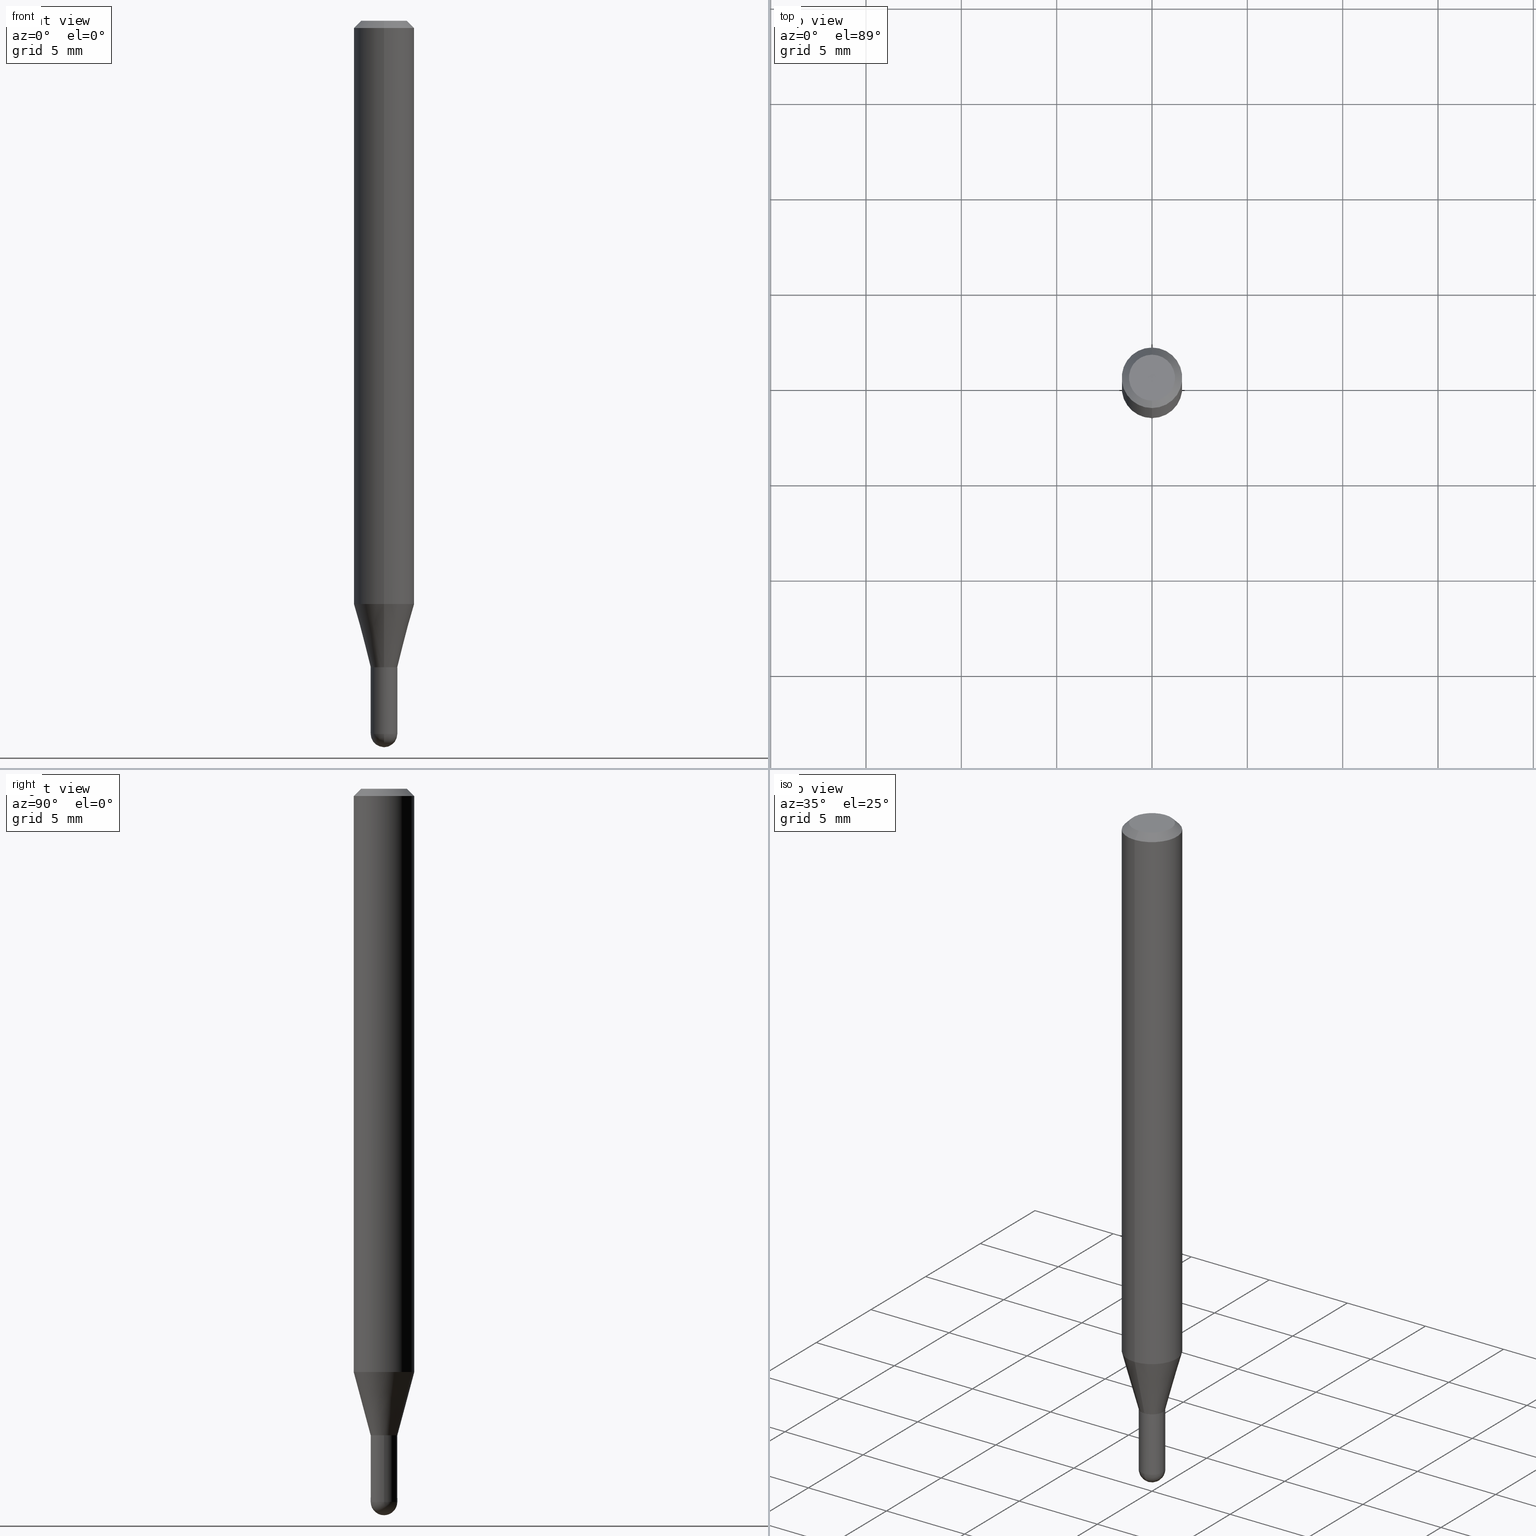
[diagram: canonical four-view strip — front | top / right | iso, engineering-drawing reading convention]
A machine part, canonical four-view strip (front | top / right | iso — engineering-drawing reading convention). The complete STEP part file that produces these views, byte-faithful:
ISO-10303-21;
HEADER;
FILE_DESCRIPTION (( 'STEP AP203' ),
    '1' );
FILE_NAME ('04433.STEP',
    '2024-03-08T19:28:56',
    ( '' ),
    ( '' ),
    'SwSTEP 2.0',
    'SolidWorks 2023',
    '' );
FILE_SCHEMA (( 'CONFIG_CONTROL_DESIGN' ));
ENDSEC;

DATA;
#1 = PERSON_AND_ORGANIZATION ( #476, #475 ) ;
#2 = DIRECTION ( 'NONE',  ( -6.982962677686265922E-15, -1.000000000000000000, 0.000000000000000000 ) ) ;
#3 = CLOSED_SHELL ( 'NONE', ( #393, #314, #457, #66, #229 ) ) ;
#4 = VECTOR ( 'NONE', #322, 39.37007874015748143 ) ;
#5 = VERTEX_POINT ( 'NONE', #416 ) ;
#6 = PERSON_AND_ORGANIZATION ( #476, #475 ) ;
#7 = LINE ( 'NONE', #172, #433 ) ;
#8 = DIRECTION ( 'NONE',  ( -2.445461311357550980E-29, 3.491492071862827071E-15, 1.000000000000000000 ) ) ;
#9 = DIRECTION ( 'NONE',  ( -2.445461311357550980E-29, 3.491492071862827071E-15, 1.000000000000000000 ) ) ;
#10 = ORIENTED_EDGE ( 'NONE', *, *, #462, .F. ) ;
#11 = DIRECTION ( 'NONE',  ( -2.445461311357550980E-29, 3.491492071862827071E-15, 1.000000000000000000 ) ) ;
#12 = DIRECTION ( 'NONE',  ( 1.000000000000000000, -6.982962677686277755E-15, 0.000000000000000000 ) ) ;
#13 = VECTOR ( 'NONE', #57, 39.37007874015748854 ) ;
#14 = AXIS2_PLACEMENT_3D ( 'NONE', #388, #344, #505 ) ;
#15 = CC_DESIGN_APPROVAL ( #159, ( #383 ) ) ;
#16 = DIRECTION ( 'NONE',  ( -2.445468806185136597E-29, 3.491481338843145583E-15, 1.000000000000000000 ) ) ;
#17 = DIRECTION ( 'NONE',  ( -2.445461311357550700E-29, 3.491492071862827071E-15, 1.000000000000000000 ) ) ;
#18 = VERTEX_POINT ( 'NONE', #313 ) ;
#19 = ORIENTED_EDGE ( 'NONE', *, *, #409, .F. ) ;
#20 = ORIENTED_EDGE ( 'NONE', *, *, #321, .F. ) ;
#21 = DIRECTION ( 'NONE',  ( -6.982962677686265922E-15, -1.000000000000000000, 0.000000000000000000 ) ) ;
#22 = CARTESIAN_POINT ( 'NONE',  ( -0.02750000000000000708, -4.705767677067038393E-15, -1.472500000000000142 ) ) ;
#23 = ORIENTED_EDGE ( 'NONE', *, *, #386, .F. ) ;
#24 =( NAMED_UNIT ( * ) SI_UNIT ( $, .STERADIAN. ) SOLID_ANGLE_UNIT ( ) );
#25 = AXIS2_PLACEMENT_3D ( 'NONE', #319, #47, #512 ) ;
#26 = EDGE_CURVE ( 'NONE', #108, #288, #493, .T. ) ;
#27 = ORIENTED_EDGE ( 'NONE', *, *, #265, .F. ) ;
#28 = ORIENTED_EDGE ( 'NONE', *, *, #316, .T. ) ;
#29 = CARTESIAN_POINT ( 'NONE',  ( 0.000000000000000000, 0.000000000000000000, 0.000000000000000000 ) ) ;
#30 = CARTESIAN_POINT ( 'NONE',  ( -0.02750000000000000708, 1.953992523340276014E-16, -1.352707149820099356E-30 ) ) ;
#31 = CYLINDRICAL_SURFACE ( 'NONE', #382, 0.06250000000000000000 ) ;
#32 = LINE ( 'NONE', #30, #136 ) ;
#33 = CC_DESIGN_PERSON_AND_ORGANIZATION_ASSIGNMENT ( #1, #240, ( #56 ) ) ;
#34 = CARTESIAN_POINT ( 'NONE',  ( 2.945260345494779582E-29, -4.205077012712332397E-15, -1.204378221735094456 ) ) ;
#35 = CIRCLE ( 'NONE', #104, 0.02750000000000019790 ) ;
#36 = CARTESIAN_POINT ( 'NONE',  ( 3.598601109812370247E-29, -5.144574050144187163E-15, -1.472500000000000142 ) ) ;
#37 = DIRECTION ( 'NONE',  ( -2.445461311357550980E-29, 3.491492071862827071E-15, 1.000000000000000000 ) ) ;
#38 = PERSON_AND_ORGANIZATION ( #476, #475 ) ;
#39 = CARTESIAN_POINT ( 'NONE',  ( 3.598601109812370247E-29, -5.144574050144187163E-15, -1.472500000000000142 ) ) ;
#40 = CARTESIAN_POINT ( 'NONE',  ( 3.264700856257157760E-29, -4.661127587355599122E-15, -1.335000000000000187 ) ) ;
#41 = VECTOR ( 'NONE', #285, 39.37007874015748143 ) ;
#42 = CARTESIAN_POINT ( 'NONE',  ( 1.918465386552596625E-16, 0.02699999999999533676, -1.335000000000000409 ) ) ;
#43 = EDGE_CURVE ( 'NONE', #423, #451, #274, .T. ) ;
#44 = FACE_OUTER_BOUND ( 'NONE', #293, .T. ) ;
#45 = VERTEX_POINT ( 'NONE', #311 ) ;
#46 = DATE_TIME_ROLE ( 'creation_date' ) ;
#47 = DIRECTION ( 'NONE',  ( 2.445461311357550980E-29, -3.491492071862827071E-15, -1.000000000000000000 ) ) ;
#48 = CIRCLE ( 'NONE', #85, 0.02750000000000019443 ) ;
#49 = ORIENTED_EDGE ( 'NONE', *, *, #402, .T. ) ;
#50 = CARTESIAN_POINT ( 'NONE',  ( 2.945260345494779582E-29, -4.205077012712332397E-15, -1.204378221735094456 ) ) ;
#51 = CARTESIAN_POINT ( 'NONE',  ( 0.000000000000000000, 0.000000000000000000, 0.000000000000000000 ) ) ;
#52 = PLANE ( 'NONE',  #93 ) ;
#53 = ADVANCED_FACE ( 'NONE', ( #226 ), #297, .F. ) ;
#54 = EDGE_LOOP ( 'NONE', ( #90, #506, #410, #348, #100 ) ) ;
#55 = DIRECTION ( 'NONE',  ( -6.982962677686265922E-15, -1.000000000000000000, 3.491492071862827071E-15 ) ) ;
#56 = PRODUCT_DEFINITION ( 'UNKNOWN', '', #383, #284 ) ;
#57 = DIRECTION ( 'NONE',  ( 1.839019923739650408E-15, 0.2588190451025320082, 0.9659258262890650926 ) ) ;
#58 = APPLICATION_PROTOCOL_DEFINITION ( 'international standard', 'config_control_design', 1994, #292 ) ;
#59 = ORIENTED_EDGE ( 'NONE', *, *, #392, .T. ) ;
#60 = CARTESIAN_POINT ( 'NONE',  ( 1.601770415187410324E-45, -2.286917678720774903E-31, -6.549972423396132599E-17 ) ) ;
#61 = CIRCLE ( 'NONE', #145, 0.02750000000000000014 ) ;
#62 = APPROVAL_PERSON_ORGANIZATION ( #430, #218, #278 ) ;
#63 = DIRECTION ( 'NONE',  ( 2.445461311357550700E-29, -3.491492071862827071E-15, -1.000000000000000000 ) ) ;
#64 = DIMENSIONAL_EXPONENTS ( 1.000000000000000000, 0.000000000000000000, 0.000000000000000000, 0.000000000000000000, 0.000000000000000000, 0.000000000000000000, 0.000000000000000000 ) ;
#65 = EDGE_LOOP ( 'NONE', ( #209, #360 ) ) ;
#66 = ADVANCED_FACE ( 'NONE', ( #390 ), #222, .T. ) ;
#67 = ORIENTED_EDGE ( 'NONE', *, *, #386, .T. ) ;
#68 = CARTESIAN_POINT ( 'NONE',  ( 3.264690850662331732E-29, -4.661141915936875169E-15, -1.335000000000000409 ) ) ;
#69 = CIRCLE ( 'NONE', #335, 0.04749999999999999362 ) ;
#70 = CARTESIAN_POINT ( 'NONE',  ( 0.000000000000000000, 0.000000000000000000, 0.000000000000000000 ) ) ;
#71 = APPROVAL_STATUS ( 'not_yet_approved' ) ;
#72 = CARTESIAN_POINT ( 'NONE',  ( 3.598601109812370247E-29, -5.144574050144187163E-15, -1.472500000000000142 ) ) ;
#73 = ORIENTED_EDGE ( 'NONE', *, *, #157, .T. ) ;
#74 = DATE_AND_TIME ( #173, #155 ) ;
#75 = LINE ( 'NONE', #317, #41 ) ;
#76 = PERSON_AND_ORGANIZATION_ROLE ( 'design_supplier' ) ;
#77 = DIRECTION ( 'NONE',  ( -6.982962677686265922E-15, -1.000000000000000000, 0.000000000000000000 ) ) ;
#78 = AXIS2_PLACEMENT_3D ( 'NONE', #472, #122, #148 ) ;
#79 = CC_DESIGN_PERSON_AND_ORGANIZATION_ASSIGNMENT ( #399, #76, ( #383 ) ) ;
#80 = DIRECTION ( 'NONE',  ( -2.445461311357550980E-29, 3.491492071862827071E-15, 1.000000000000000000 ) ) ;
#81 = FACE_OUTER_BOUND ( 'NONE', #54, .T. ) ;
#82 = ORIENTED_EDGE ( 'NONE', *, *, #392, .F. ) ;
#83 = LINE ( 'NONE', #130, #4 ) ;
#84 = AXIS2_PLACEMENT_3D ( 'NONE', #39, #193, #197 ) ;
#85 = AXIS2_PLACEMENT_3D ( 'NONE', #450, #11, #21 ) ;
#86 = AXIS2_PLACEMENT_3D ( 'NONE', #60, #342, #106 ) ;
#87 = ORIENTED_EDGE ( 'NONE', *, *, #26, .T. ) ;
#88 = ORIENTED_EDGE ( 'NONE', *, *, #482, .F. ) ;
#89 = ADVANCED_FACE ( 'NONE', ( #302 ), #508, .T. ) ;
#90 = ORIENTED_EDGE ( 'NONE', *, *, #316, .F. ) ;
#91 = CARTESIAN_POINT ( 'NONE',  ( 3.264690850662331732E-29, -4.661141915936875169E-15, -1.335000000000000409 ) ) ;
#92 = EDGE_CURVE ( 'NONE', #320, #273, #377, .T. ) ;
#93 = AXIS2_PLACEMENT_3D ( 'NONE', #217, #17, #488 ) ;
#94 = CARTESIAN_POINT ( 'NONE',  ( 0.000000000000000000, 0.000000000000000000, 0.000000000000000000 ) ) ;
#95 = CARTESIAN_POINT ( 'NONE',  ( 1.601770415187410324E-45, -2.286917678720774903E-31, -6.549972423396132599E-17 ) ) ;
#96 = CARTESIAN_POINT ( 'NONE',  ( 1.953992523340615224E-16, 0.02749999999999553149, -1.335000000000000187 ) ) ;
#97 = DIRECTION ( 'NONE',  ( -2.445461311357550980E-29, 3.491492071862827071E-15, 1.000000000000000000 ) ) ;
#98 = CARTESIAN_POINT ( 'NONE',  ( -1.920314736363410365E-16, -0.02750000000000485390, -1.335000000000000187 ) ) ;
#99 = EDGE_LOOP ( 'NONE', ( #215, #183, #303, #343 ) ) ;
#100 = ORIENTED_EDGE ( 'NONE', *, *, #160, .F. ) ;
#101 = DIRECTION ( 'NONE',  ( 1.000000000000000000, 0.000000000000000000, 0.000000000000000000 ) ) ;
#102 = APPROVAL ( #71, 'UNSPECIFIED' ) ;
#103 = DIRECTION ( 'NONE',  ( -6.982962677686265922E-15, -1.000000000000000000, 4.370956789862821150E-15 ) ) ;
#104 = AXIS2_PLACEMENT_3D ( 'NONE', #200, #473, #283 ) ;
#105 = CC_DESIGN_APPROVAL ( #218, ( #56 ) ) ;
#106 = DIRECTION ( 'NONE',  ( -6.982962677686266711E-15, -1.000000000000000000, 3.491492071862827071E-15 ) ) ;
#107 = CARTESIAN_POINT ( 'NONE',  ( 3.197442310920768728E-16, 0.02749999999999553149, -1.335000000000000187 ) ) ;
#108 = VERTEX_POINT ( 'NONE', #223 ) ;
#109 = DIRECTION ( 'NONE',  ( -6.982962677686265922E-15, -1.000000000000000000, 0.000000000000000000 ) ) ;
#110 = ORIENTED_EDGE ( 'NONE', *, *, #462, .T. ) ;
#111 = PERSON_AND_ORGANIZATION ( #476, #475 ) ;
#112 = AXIS2_PLACEMENT_3D ( 'NONE', #205, #132, #405 ) ;
#113 = AXIS2_PLACEMENT_3D ( 'NONE', #324, #290, #134 ) ;
#114 = DIRECTION ( 'NONE',  ( -2.445461311357550980E-29, 3.491492071862827071E-15, 1.000000000000000000 ) ) ;
#115 = CC_DESIGN_DATE_AND_TIME_ASSIGNMENT ( #436, #46, ( #56 ) ) ;
#116 = ADVANCED_FACE ( 'NONE', ( #44 ), #406, .T. ) ;
#117 = DATE_AND_TIME ( #350, #485 ) ;
#118 = COORDINATED_UNIVERSAL_TIME_OFFSET ( 5, 0, .BEHIND. ) ;
#119 = CYLINDRICAL_SURFACE ( 'NONE', #219, 0.02750000000000019443 ) ;
#120 = ADVANCED_FACE ( 'NONE', ( #247 ), #507, .T. ) ;
#121 = APPROVAL_STATUS ( 'not_yet_approved' ) ;
#122 = DIRECTION ( 'NONE',  ( -2.445461311357550980E-29, 3.491492071862827071E-15, 1.000000000000000000 ) ) ;
#123 = DIRECTION ( 'NONE',  ( -4.851104656540964275E-15, -0.7071067811865500152, -0.7071067811865450192 ) ) ;
#124 = DATE_AND_TIME ( #403, #362 ) ;
#125 = CC_DESIGN_DATE_AND_TIME_ASSIGNMENT ( #117, #276, ( #496 ) ) ;
#126 = CIRCLE ( 'NONE', #78, 0.06250000000000000000 ) ;
#127 = CARTESIAN_POINT ( 'NONE',  ( 3.264690850662330611E-29, -4.661141915936874380E-15, -1.335000000000000187 ) ) ;
#128 = CONICAL_SURFACE ( 'NONE', #162, 0.02699999999999999969, 0.7853981633974739252 ) ;
#129 = DATE_AND_TIME ( #470, #147 ) ;
#130 = CARTESIAN_POINT ( 'NONE',  ( -1.920314736363736756E-16, -0.02750000000000019443, 9.601603197622842336E-17 ) ) ;
#131 = EDGE_LOOP ( 'NONE', ( #178, #164, #88, #380 ) ) ;
#132 = DIRECTION ( 'NONE',  ( 2.445461311357550980E-29, -3.491492071862827071E-15, -1.000000000000000000 ) ) ;
#133 = ORIENTED_EDGE ( 'NONE', *, *, #231, .F. ) ;
#134 = DIRECTION ( 'NONE',  ( 1.000000000000000000, -6.982962677686265922E-15, 4.876176775795935232E-29 ) ) ;
#135 = DIRECTION ( 'NONE',  ( -1.807323732225379838E-15, -0.2588190451025252914, 0.9659258262890670910 ) ) ;
#136 = VECTOR ( 'NONE', #190, 39.37007874015748143 ) ;
#137 = ORIENTED_EDGE ( 'NONE', *, *, #231, .T. ) ;
#138 = ADVANCED_FACE ( 'NONE', ( #287 ), #119, .F. ) ;
#139 = ADVANCED_FACE ( 'NONE', ( #398 ), #349, .T. ) ;
#140 = DIRECTION ( 'NONE',  ( -6.982962677686265922E-15, -1.000000000000000000, 4.370956789862821150E-15 ) ) ;
#141 = FACE_OUTER_BOUND ( 'NONE', #338, .T. ) ;
#142 = ORIENTED_EDGE ( 'NONE', *, *, #227, .T. ) ;
#143 = FACE_OUTER_BOUND ( 'NONE', #275, .T. ) ;
#144 = EDGE_CURVE ( 'NONE', #108, #423, #167, .T. ) ;
#145 = AXIS2_PLACEMENT_3D ( 'NONE', #242, #169, #432 ) ;
#146 = DIRECTION ( 'NONE',  ( -6.982962677686265922E-15, -1.000000000000000000, 0.000000000000000000 ) ) ;
#147 = LOCAL_TIME ( 14, 28, 56.00000000000000000, #198 ) ;
#148 = DIRECTION ( 'NONE',  ( -6.982962677686265922E-15, -1.000000000000000000, 3.483106191921935554E-15 ) ) ;
#149 = ORIENTED_EDGE ( 'NONE', *, *, #411, .T. ) ;
#150 = DIRECTION ( 'NONE',  ( 6.982962677686265922E-15, 1.000000000000000000, -3.491492071862827071E-15 ) ) ;
#151 = CARTESIAN_POINT ( 'NONE',  ( 1.920314736364049589E-16, 0.02749999999999534067, -1.335000000000000187 ) ) ;
#152 = AXIS2_PLACEMENT_3D ( 'NONE', #40, #477, #277 ) ;
#153 = DIRECTION ( 'NONE',  ( -1.000000000000000000, 6.982962677686265922E-15, -4.883557194083112340E-29 ) ) ;
#154 = AXIS2_PLACEMENT_3D ( 'NONE', #72, #426, #345 ) ;
#155 = LOCAL_TIME ( 14, 28, 56.00000000000000000, #118 ) ;
#156 = LENGTH_MEASURE_WITH_UNIT ( LENGTH_MEASURE( 0.02539999999999999897 ), #228 );
#157 = EDGE_CURVE ( 'NONE', #449, #483, #364, .T. ) ;
#158 = CARTESIAN_POINT ( 'NONE',  ( 3.264690850662331732E-29, -4.661141915936875169E-15, -1.335000000000000409 ) ) ;
#159 = APPROVAL ( #400, 'UNSPECIFIED' ) ;
#160 = EDGE_CURVE ( 'NONE', #18, #260, #248, .T. ) ;
#161 = ORIENTED_EDGE ( 'NONE', *, *, #227, .F. ) ;
#162 = AXIS2_PLACEMENT_3D ( 'NONE', #68, #189, #234 ) ;
#163 = CC_DESIGN_APPROVAL ( #102, ( #496 ) ) ;
#164 = ORIENTED_EDGE ( 'NONE', *, *, #92, .T. ) ;
#165 = COORDINATED_UNIVERSAL_TIME_OFFSET ( 5, 0, .BEHIND. ) ;
#166 = EDGE_CURVE ( 'NONE', #320, #423, #7, .T. ) ;
#167 = LINE ( 'NONE', #42, #371 ) ;
#168 = APPLICATION_PROTOCOL_DEFINITION ( 'international standard', 'config_control_design', 1994, #363 ) ;
#169 = DIRECTION ( 'NONE',  ( -2.445468806185136597E-29, 3.491481338843145583E-15, 1.000000000000000000 ) ) ;
#170 = CLOSED_SHELL ( 'NONE', ( #138, #369, #120, #89, #139, #116, #447, #186, #442, #310, #456, #53 ) ) ;
#171 = AXIS2_PLACEMENT_3D ( 'NONE', #425, #63, #150 ) ;
#172 = CARTESIAN_POINT ( 'NONE',  ( 1.953992523340288833E-16, 0.02750000000000019443, -9.601603197622842336E-17 ) ) ;
#173 = CALENDAR_DATE ( 2024, 8, 3 ) ;
#174 = CARTESIAN_POINT ( 'NONE',  ( -4.287811248607203282E-16, -0.06250000000000005551, -0.01499999999999984852 ) ) ;
#175 = ORIENTED_EDGE ( 'NONE', *, *, #422, .T. ) ;
#176 = CARTESIAN_POINT ( 'NONE',  ( 4.440892098500625669E-16, 0.06250000000000000000, -2.182182544914266919E-16 ) ) ;
#177 = CARTESIAN_POINT ( 'NONE',  ( 0.02750000000000000708, -1.920314736363723691E-16, 1.340948613343882588E-30 ) ) ;
#178 = ORIENTED_EDGE ( 'NONE', *, *, #253, .T. ) ;
#179 = CIRCLE ( 'NONE', #413, 0.02749999999999996197 ) ;
#180 = DIRECTION ( 'NONE',  ( 1.000000000000000000, -6.982962677686277755E-15, 0.000000000000000000 ) ) ;
#181 = ORIENTED_EDGE ( 'NONE', *, *, #422, .F. ) ;
#182 = CARTESIAN_POINT ( 'NONE',  ( 3.263468120006652380E-29, -4.659396169900942579E-15, -1.334500000000000242 ) ) ;
#183 = ORIENTED_EDGE ( 'NONE', *, *, #166, .T. ) ;
#184 = AXIS2_PLACEMENT_3D ( 'NONE', #203, #401, #2 ) ;
#185 = ORIENTED_EDGE ( 'NONE', *, *, #471, .T. ) ;
#186 = ADVANCED_FACE ( 'NONE', ( #431 ), #396, .T. ) ;
#187 = FACE_OUTER_BOUND ( 'NONE', #408, .T. ) ;
#188 = EDGE_CURVE ( 'NONE', #497, #451, #83, .T. ) ;
#189 = DIRECTION ( 'NONE',  ( -2.445461311357550980E-29, 3.491492071862827071E-15, 1.000000000000000000 ) ) ;
#190 = DIRECTION ( 'NONE',  ( -2.445468806185136877E-29, 3.491481338843145188E-15, 1.000000000000000000 ) ) ;
#191 = DIRECTION ( 'NONE',  ( -2.445461311357550980E-29, 3.491492071862827071E-15, 1.000000000000000000 ) ) ;
#192 = APPROVAL_PERSON_ORGANIZATION ( #510, #102, #357 ) ;
#193 = DIRECTION ( 'NONE',  ( 1.000000000000000000, -6.982962677686265922E-15, 4.883557194083112901E-29 ) ) ;
#194 = LINE ( 'NONE', #266, #501 ) ;
#195 = EDGE_CURVE ( 'NONE', #5, #260, #365, .T. ) ;
#196 = DIRECTION ( 'NONE',  ( -6.982962677686265922E-15, -1.000000000000000000, 3.491492071862827071E-15 ) ) ;
#197 = DIRECTION ( 'NONE',  ( -6.982962677686265922E-15, -1.000000000000000000, 0.000000000000000000 ) ) ;
#198 = COORDINATED_UNIVERSAL_TIME_OFFSET ( 5, 0, .BEHIND. ) ;
#199 = AXIS2_PLACEMENT_3D ( 'NONE', #490, #16, #180 ) ;
#200 = CARTESIAN_POINT ( 'NONE',  ( 3.263468120006652380E-29, -4.659396169900942579E-15, -1.334500000000000242 ) ) ;
#201 = SHAPE_DEFINITION_REPRESENTATION ( #502, #235 ) ;
#202 = CALENDAR_DATE ( 2024, 8, 3 ) ;
#203 = CARTESIAN_POINT ( 'NONE',  ( 3.264690850662330611E-29, -4.661141915936874380E-15, -1.335000000000000187 ) ) ;
#204 = COORDINATED_UNIVERSAL_TIME_OFFSET ( 5, 0, .BEHIND. ) ;
#205 = CARTESIAN_POINT ( 'NONE',  ( 3.668191967036342918E-31, -5.237238107794263631E-17, -0.01500000000000006710 ) ) ;
#206 = ORIENTED_EDGE ( 'NONE', *, *, #144, .T. ) ;
#207 = AXIS2_PLACEMENT_3D ( 'NONE', #486, #448, #367 ) ;
#208 = DIRECTION ( 'NONE',  ( -6.982962677686265922E-15, -1.000000000000000000, 0.000000000000000000 ) ) ;
#209 = ORIENTED_EDGE ( 'NONE', *, *, #402, .F. ) ;
#210 = DIRECTION ( 'NONE',  ( -6.982962677686266711E-15, -1.000000000000000000, 3.491492071862827071E-15 ) ) ;
#211 = DIRECTION ( 'NONE',  ( -2.445468806185136597E-29, 3.491481338843145583E-15, 1.000000000000000000 ) ) ;
#212 = VERTEX_POINT ( 'NONE', #280 ) ;
#213 = EDGE_CURVE ( 'NONE', #260, #18, #61, .T. ) ;
#214 = CARTESIAN_POINT ( 'NONE',  ( 3.600952817107613706E-29, -5.141206271446532325E-15, -1.472500000000000142 ) ) ;
#215 = ORIENTED_EDGE ( 'NONE', *, *, #373, .F. ) ;
#216 = DIRECTION ( 'NONE',  ( -6.982962677686265133E-15, -1.000000000000000000, 0.000000000000000000 ) ) ;
#217 = CARTESIAN_POINT ( 'NONE',  ( 3.264690850662331732E-29, -4.661141915936875169E-15, -1.335000000000000409 ) ) ;
#218 = APPROVAL ( #121, 'UNSPECIFIED' ) ;
#219 = AXIS2_PLACEMENT_3D ( 'NONE', #315, #359, #469 ) ;
#220 = CIRCLE ( 'NONE', #267, 0.02750000000000000708 ) ;
#221 = EDGE_CURVE ( 'NONE', #492, #483, #75, .T. ) ;
#222 = SPHERICAL_SURFACE ( 'NONE', #84, 0.02749999999999996197 ) ;
#223 = CARTESIAN_POINT ( 'NONE',  ( 1.936228954946606048E-16, 0.02699999999999533676, -1.335000000000000409 ) ) ;
#224 = CARTESIAN_POINT ( 'NONE',  ( 3.600952817107613706E-29, -5.141206271446532325E-15, -1.472500000000000142 ) ) ;
#225 = AXIS2_PLACEMENT_3D ( 'NONE', #94, #415, #55 ) ;
#226 = FACE_OUTER_BOUND ( 'NONE', #460, .T. ) ;
#227 = EDGE_CURVE ( 'NONE', #483, #212, #435, .T. ) ;
#228 =( LENGTH_UNIT ( ) NAMED_UNIT ( * ) SI_UNIT ( $, .METRE. ) );
#229 = ADVANCED_FACE ( 'NONE', ( #81 ), #250, .T. ) ;
#230 = DIRECTION ( 'NONE',  ( 0.000000000000000000, 0.000000000000000000, 1.000000000000000000 ) ) ;
#231 = EDGE_CURVE ( 'NONE', #451, #423, #35, .T. ) ;
#232 = AXIS2_PLACEMENT_3D ( 'NONE', #91, #445, #299 ) ;
#233 = EDGE_LOOP ( 'NONE', ( #389, #149, #161, #308 ) ) ;
#234 = DIRECTION ( 'NONE',  ( -6.982962677686265133E-15, -1.000000000000000000, 0.000000000000000000 ) ) ;
#235 = ADVANCED_BREP_SHAPE_REPRESENTATION ( '04433', ( #256, #421, #318 ), #296 ) ;
#236 = ORIENTED_EDGE ( 'NONE', *, *, #279, .F. ) ;
#237 = ORIENTED_EDGE ( 'NONE', *, *, #499, .T. ) ;
#238 = DIRECTION ( 'NONE',  ( -6.982962677686265922E-15, -1.000000000000000000, 3.483106191921935554E-15 ) ) ;
#239 = VERTEX_POINT ( 'NONE', #437 ) ;
#240 = PERSON_AND_ORGANIZATION_ROLE ( 'creator' ) ;
#241 = CIRCLE ( 'NONE', #14, 0.02750000000000000708 ) ;
#242 = CARTESIAN_POINT ( 'NONE',  ( 3.264700856257157760E-29, -4.661127587355599122E-15, -1.335000000000000187 ) ) ;
#243 = APPROVAL_ROLE ( '' ) ;
#244 = CARTESIAN_POINT ( 'NONE',  ( 0.02750000000000000014, -4.853159060991972403E-15, -1.335000000000000187 ) ) ;
#245 = ORIENTED_EDGE ( 'NONE', *, *, #253, .F. ) ;
#246 = MECHANICAL_CONTEXT ( 'NONE', #292, 'mechanical' ) ;
#247 = FACE_OUTER_BOUND ( 'NONE', #286, .T. ) ;
#248 = CIRCLE ( 'NONE', #152, 0.02750000000000000014 ) ;
#249 = CIRCLE ( 'NONE', #372, 0.02750000000000000708 ) ;
#250 = CYLINDRICAL_SURFACE ( 'NONE', #351, 0.02750000000000000708 ) ;
#251 = VERTEX_POINT ( 'NONE', #354 ) ;
#252 = LINE ( 'NONE', #176, #407 ) ;
#253 = EDGE_CURVE ( 'NONE', #497, #320, #428, .T. ) ;
#254 = DIRECTION ( 'NONE',  ( -2.445468806185136597E-29, 3.491481338843145583E-15, 1.000000000000000000 ) ) ;
#255 = DIRECTION ( 'NONE',  ( -2.445461311357550980E-29, 3.491492071862827071E-15, 1.000000000000000000 ) ) ;
#256 = MANIFOLD_SOLID_BREP ( 'Body-Move/Copy2[1]', #3 ) ;
#257 = EDGE_LOOP ( 'NONE', ( #330, #263 ) ) ;
#258 = DIRECTION ( 'NONE',  ( 1.000000000000000000, -6.982962677686277755E-15, 0.000000000000000000 ) ) ;
#259 = AXIS2_PLACEMENT_3D ( 'NONE', #34, #304, #103 ) ;
#260 = VERTEX_POINT ( 'NONE', #244 ) ;
#261 = VERTEX_POINT ( 'NONE', #22 ) ;
#262 = ORIENTED_EDGE ( 'NONE', *, *, #157, .F. ) ;
#263 = ORIENTED_EDGE ( 'NONE', *, *, #160, .T. ) ;
#264 = PERSON_AND_ORGANIZATION_ROLE ( 'creator' ) ;
#265 = EDGE_CURVE ( 'NONE', #261, #239, #220, .T. ) ;
#266 = CARTESIAN_POINT ( 'NONE',  ( -1.885399922974965256E-16, -0.02700000000000466263, -1.335000000000000409 ) ) ;
#267 = AXIS2_PLACEMENT_3D ( 'NONE', #224, #334, #258 ) ;
#268 = PLANE ( 'NONE',  #484 ) ;
#269 = ORIENTED_EDGE ( 'NONE', *, *, #471, .F. ) ;
#270 =( CONVERSION_BASED_UNIT ( 'INCH', #156 ) LENGTH_UNIT ( ) NAMED_UNIT ( #64 ) );
#271 = CARTESIAN_POINT ( 'NONE',  ( 1.953992523340608815E-16, 0.02749999999999544129, -1.334500000000000242 ) ) ;
#272 = SPHERICAL_SURFACE ( 'NONE', #154, 0.02749999999999996197 ) ;
#273 = VERTEX_POINT ( 'NONE', #325 ) ;
#274 = CIRCLE ( 'NONE', #458, 0.02750000000000019790 ) ;
#275 = EDGE_LOOP ( 'NONE', ( #67, #28, #336, #374, #185 ) ) ;
#276 = DATE_TIME_ROLE ( 'classification_date' ) ;
#277 = DIRECTION ( 'NONE',  ( 1.000000000000000000, -6.982962677686279332E-15, 0.000000000000000000 ) ) ;
#278 = APPROVAL_ROLE ( '' ) ;
#279 = EDGE_CURVE ( 'NONE', #251, #212, #376, .T. ) ;
#280 = CARTESIAN_POINT ( 'NONE',  ( 4.440892098500922971E-16, 0.06249999999999995143, -0.01500000000000028394 ) ) ;
#281 = PERSON_AND_ORGANIZATION_ROLE ( 'design_owner' ) ;
#282 = CIRCLE ( 'NONE', #232, 0.02699999999999999969 ) ;
#283 = DIRECTION ( 'NONE',  ( -6.982962677686265922E-15, -1.000000000000000000, 0.000000000000000000 ) ) ;
#284 = DESIGN_CONTEXT ( 'detailed design', #363, 'design' ) ;
#285 = DIRECTION ( 'NONE',  ( -2.445461311357550980E-29, 3.491492071862827071E-15, 1.000000000000000000 ) ) ;
#286 = EDGE_LOOP ( 'NONE', ( #19, #73, #142, #236 ) ) ;
#287 = FACE_OUTER_BOUND ( 'NONE', #99, .T. ) ;
#288 = VERTEX_POINT ( 'NONE', #491 ) ;
#289 = ORIENTED_EDGE ( 'NONE', *, *, #368, .F. ) ;
#290 = DIRECTION ( 'NONE',  ( -2.445468806185136597E-29, 3.491481338843145583E-15, 1.000000000000000000 ) ) ;
#291 = EDGE_CURVE ( 'NONE', #497, #492, #481, .T. ) ;
#292 = APPLICATION_CONTEXT ( 'configuration controlled 3d designs of mechanical parts and assemblies' ) ;
#293 = EDGE_LOOP ( 'NONE', ( #366, #298, #489, #82 ) ) ;
#294 = CYLINDRICAL_SURFACE ( 'NONE', #113, 0.02750000000000000708 ) ;
#295 = VECTOR ( 'NONE', #468, 39.37007874015748143 ) ;
#296 =( GEOMETRIC_REPRESENTATION_CONTEXT ( 3 ) GLOBAL_UNCERTAINTY_ASSIGNED_CONTEXT ( ( #446 ) ) GLOBAL_UNIT_ASSIGNED_CONTEXT ( ( #270, #312, #24 ) ) REPRESENTATION_CONTEXT ( 'NONE', 'WORKASPACE' ) );
#297 = CYLINDRICAL_SURFACE ( 'NONE', #441, 0.02750000000000019443 ) ;
#298 = ORIENTED_EDGE ( 'NONE', *, *, #373, .T. ) ;
#299 = DIRECTION ( 'NONE',  ( -6.982962677686265133E-15, -1.000000000000000000, 0.000000000000000000 ) ) ;
#300 = DIRECTION ( 'NONE',  ( 4.937700262164548042E-15, 0.7071067811865451302, -0.7071067811865499042 ) ) ;
#301 = EDGE_CURVE ( 'NONE', #239, #5, #249, .T. ) ;
#302 = FACE_OUTER_BOUND ( 'NONE', #233, .T. ) ;
#303 = ORIENTED_EDGE ( 'NONE', *, *, #43, .T. ) ;
#304 = DIRECTION ( 'NONE',  ( -2.445461311357550980E-29, 3.491492071862827071E-15, 1.000000000000000000 ) ) ;
#305 = AXIS2_PLACEMENT_3D ( 'NONE', #127, #9, #208 ) ;
#306 = EDGE_LOOP ( 'NONE', ( #49, #206, #133, #181 ) ) ;
#307 = CARTESIAN_POINT ( 'NONE',  ( 0.000000000000000000, 0.000000000000000000, 0.000000000000000000 ) ) ;
#308 = ORIENTED_EDGE ( 'NONE', *, *, #221, .F. ) ;
#309 = PLANE ( 'NONE',  #171 ) ;
#310 = ADVANCED_FACE ( 'NONE', ( #328 ), #52, .F. ) ;
#311 = CARTESIAN_POINT ( 'NONE',  ( 1.953992523340633713E-16, 0.02749999999999484107, -1.472500000000000142 ) ) ;
#312 =( NAMED_UNIT ( * ) PLANE_ANGLE_UNIT ( ) SI_UNIT ( $, .RADIAN. ) );
#313 = CARTESIAN_POINT ( 'NONE',  ( -0.02750000000000000014, -4.705767677067038393E-15, -1.335000000000000187 ) ) ;
#314 = ADVANCED_FACE ( 'NONE', ( #141 ), #272, .T. ) ;
#315 = CARTESIAN_POINT ( 'NONE',  ( 0.000000000000000000, 0.000000000000000000, 0.000000000000000000 ) ) ;
#316 = EDGE_CURVE ( 'NONE', #261, #18, #32, .T. ) ;
#317 = CARTESIAN_POINT ( 'NONE',  ( -4.364351673553916201E-16, -0.06250000000000000000, 2.182182544914266919E-16 ) ) ;
#318 = AXIS2_PLACEMENT_3D ( 'NONE', #29, #230, #101 ) ;
#319 = CARTESIAN_POINT ( 'NONE',  ( 3.668191967036342918E-31, -5.237238107794263631E-17, -0.01500000000000006710 ) ) ;
#320 = VERTEX_POINT ( 'NONE', #107 ) ;
#321 = EDGE_CURVE ( 'NONE', #212, #483, #126, .T. ) ;
#322 = DIRECTION ( 'NONE',  ( -2.445461311357550980E-29, 3.491492071862827071E-15, 1.000000000000000000 ) ) ;
#323 = ORIENTED_EDGE ( 'NONE', *, *, #409, .T. ) ;
#324 = CARTESIAN_POINT ( 'NONE',  ( 0.000000000000000000, 0.000000000000000000, 0.000000000000000000 ) ) ;
#325 = CARTESIAN_POINT ( 'NONE',  ( 4.440892098500917054E-16, 0.06249999999999575340, -1.204378221735094678 ) ) ;
#326 = ORIENTED_EDGE ( 'NONE', *, *, #279, .T. ) ;
#327 = AXIS2_PLACEMENT_3D ( 'NONE', #50, #487, #140 ) ;
#328 = FACE_OUTER_BOUND ( 'NONE', #65, .T. ) ;
#329 = APPROVAL_PERSON_ORGANIZATION ( #6, #159, #243 ) ;
#330 = ORIENTED_EDGE ( 'NONE', *, *, #213, .T. ) ;
#331 = CARTESIAN_POINT ( 'NONE',  ( 3.264690850662331732E-29, -4.661141915936875169E-15, -1.335000000000000409 ) ) ;
#332 = ORIENTED_EDGE ( 'NONE', *, *, #188, .T. ) ;
#333 = AXIS2_PLACEMENT_3D ( 'NONE', #158, #427, #418 ) ;
#334 = DIRECTION ( 'NONE',  ( -2.445468806185136597E-29, 3.491481338843145583E-15, 1.000000000000000000 ) ) ;
#335 = AXIS2_PLACEMENT_3D ( 'NONE', #95, #97, #210 ) ;
#336 = ORIENTED_EDGE ( 'NONE', *, *, #213, .F. ) ;
#337 = FACE_OUTER_BOUND ( 'NONE', #429, .T. ) ;
#338 = EDGE_LOOP ( 'NONE', ( #10, #454, #269, #504 ) ) ;
#339 = DIRECTION ( 'NONE',  ( -6.982962677686265922E-15, -1.000000000000000000, 3.491492071862827071E-15 ) ) ;
#340 = CARTESIAN_POINT ( 'NONE',  ( -3.773273898774340269E-16, -0.04749999999999999362, 1.003461491795229392E-16 ) ) ;
#341 = VECTOR ( 'NONE', #135, 39.37007874015748143 ) ;
#342 = DIRECTION ( 'NONE',  ( -2.445461311357550980E-29, 3.491492071862827071E-15, 1.000000000000000000 ) ) ;
#343 = ORIENTED_EDGE ( 'NONE', *, *, #188, .F. ) ;
#344 = DIRECTION ( 'NONE',  ( -2.445468806185136597E-29, 3.491481338843145583E-15, 1.000000000000000000 ) ) ;
#345 = DIRECTION ( 'NONE',  ( -6.982962677686265922E-15, -1.000000000000000000, 0.000000000000000000 ) ) ;
#346 = VERTEX_POINT ( 'NONE', #375 ) ;
#347 = PRODUCT_RELATED_PRODUCT_CATEGORY ( 'detail', '', ( #379 ) ) ;
#348 = ORIENTED_EDGE ( 'NONE', *, *, #195, .T. ) ;
#349 = CONICAL_SURFACE ( 'NONE', #184, 0.02750000000000019443, 0.2617993877991576235 ) ;
#350 = CALENDAR_DATE ( 2024, 8, 3 ) ;
#351 = AXIS2_PLACEMENT_3D ( 'NONE', #51, #211, #394 ) ;
#352 = COORDINATED_UNIVERSAL_TIME_OFFSET ( 5, 0, .BEHIND. ) ;
#353 = LOCAL_TIME ( 14, 28, 56.00000000000000000, #352 ) ;
#354 = CARTESIAN_POINT ( 'NONE',  ( 3.840629472727447874E-16, 0.04749999999999999362, -2.313455976474456035E-16 ) ) ;
#355 = DIRECTION ( 'NONE',  ( 5.024295867788190974E-15, 0.7071067811865681119, 0.7071067811865270336 ) ) ;
#356 = CC_DESIGN_PERSON_AND_ORGANIZATION_ASSIGNMENT ( #378, #264, ( #383 ) ) ;
#357 = APPROVAL_ROLE ( '' ) ;
#358 = APPROVAL_DATE_TIME ( #129, #218 ) ;
#359 = DIRECTION ( 'NONE',  ( -2.445461311357550980E-29, 3.491492071862827071E-15, 1.000000000000000000 ) ) ;
#360 = ORIENTED_EDGE ( 'NONE', *, *, #26, .F. ) ;
#361 = AXIS2_PLACEMENT_3D ( 'NONE', #511, #80, #77 ) ;
#362 = LOCAL_TIME ( 14, 28, 56.00000000000000000, #165 ) ;
#363 = APPLICATION_CONTEXT ( 'configuration controlled 3d designs of mechanical parts and assemblies' ) ;
#364 = LINE ( 'NONE', #174, #466 ) ;
#365 = LINE ( 'NONE', #177, #295 ) ;
#366 = ORIENTED_EDGE ( 'NONE', *, *, #92, .F. ) ;
#367 = DIRECTION ( 'NONE',  ( 7.105427357601001070E-15, 1.000000000000000000, 0.000000000000000000 ) ) ;
#368 = EDGE_CURVE ( 'NONE', #346, #45, #420, .T. ) ;
#369 = ADVANCED_FACE ( 'NONE', ( #452 ), #387, .T. ) ;
#370 = ORIENTED_EDGE ( 'NONE', *, *, #221, .T. ) ;
#371 = VECTOR ( 'NONE', #355, 39.37007874015748143 ) ;
#372 = AXIS2_PLACEMENT_3D ( 'NONE', #214, #254, #12 ) ;
#373 = EDGE_CURVE ( 'NONE', #320, #497, #48, .T. ) ;
#374 = ORIENTED_EDGE ( 'NONE', *, *, #195, .F. ) ;
#375 = CARTESIAN_POINT ( 'NONE',  ( 3.664675648334840268E-29, -5.242273676311202011E-15, -1.500000000000000222 ) ) ;
#376 = LINE ( 'NONE', #412, #444 ) ;
#377 = LINE ( 'NONE', #96, #13 ) ;
#378 = PERSON_AND_ORGANIZATION ( #476, #475 ) ;
#379 = PRODUCT ( '04433', '04433', '', ( #246 ) ) ;
#380 = ORIENTED_EDGE ( 'NONE', *, *, #291, .F. ) ;
#381 = CARTESIAN_POINT ( 'NONE',  ( -4.364351673553623336E-16, -0.06250000000000423273, -1.204378221735094234 ) ) ;
#382 = AXIS2_PLACEMENT_3D ( 'NONE', #307, #191, #339 ) ;
#383 = PRODUCT_DEFINITION_FORMATION_WITH_SPECIFIED_SOURCE ( 'ANY', '', #379, .NOT_KNOWN. ) ;
#384 = ORIENTED_EDGE ( 'NONE', *, *, #144, .F. ) ;
#385 = CARTESIAN_POINT ( 'NONE',  ( -1.920314736363410365E-16, -0.02750000000000485390, -1.335000000000000187 ) ) ;
#386 = EDGE_CURVE ( 'NONE', #45, #261, #509, .T. ) ;
#387 = CONICAL_SURFACE ( 'NONE', #467, 0.02699999999999999969, 0.7853981633974739252 ) ;
#388 = CARTESIAN_POINT ( 'NONE',  ( 3.600952817107613706E-29, -5.141206271446532325E-15, -1.472500000000000142 ) ) ;
#389 = ORIENTED_EDGE ( 'NONE', *, *, #482, .T. ) ;
#390 = FACE_OUTER_BOUND ( 'NONE', #478, .T. ) ;
#391 = APPROVAL_DATE_TIME ( #74, #159 ) ;
#392 = EDGE_CURVE ( 'NONE', #273, #492, #495, .T. ) ;
#393 = ADVANCED_FACE ( 'NONE', ( #143 ), #294, .T. ) ;
#394 = DIRECTION ( 'NONE',  ( 1.000000000000000000, -6.982962677686265922E-15, 4.876176775795935232E-29 ) ) ;
#395 = SECURITY_CLASSIFICATION_LEVEL ( 'unclassified' ) ;
#396 = CONICAL_SURFACE ( 'NONE', #25, 0.06250000000000000000, 0.7853981633974483900 ) ;
#397 = CC_DESIGN_SECURITY_CLASSIFICATION ( #496, ( #383 ) ) ;
#398 = FACE_OUTER_BOUND ( 'NONE', #131, .T. ) ;
#399 = PERSON_AND_ORGANIZATION ( #476, #475 ) ;
#400 = APPROVAL_STATUS ( 'not_yet_approved' ) ;
#401 = DIRECTION ( 'NONE',  ( -2.445461311357550980E-29, 3.491492071862827071E-15, 1.000000000000000000 ) ) ;
#402 = EDGE_CURVE ( 'NONE', #288, #108, #282, .T. ) ;
#403 = CALENDAR_DATE ( 2024, 8, 3 ) ;
#404 = ORIENTED_EDGE ( 'NONE', *, *, #411, .F. ) ;
#405 = DIRECTION ( 'NONE',  ( 6.982962677686265922E-15, 1.000000000000000000, -3.483106191921935554E-15 ) ) ;
#406 = CONICAL_SURFACE ( 'NONE', #305, 0.02750000000000019443, 0.2617993877991576235 ) ;
#407 = VECTOR ( 'NONE', #8, 39.37007874015748143 ) ;
#408 = EDGE_LOOP ( 'NONE', ( #404, #59, #370, #20 ) ) ;
#409 = EDGE_CURVE ( 'NONE', #449, #251, #69, .T. ) ;
#410 = ORIENTED_EDGE ( 'NONE', *, *, #301, .T. ) ;
#411 = EDGE_CURVE ( 'NONE', #273, #212, #252, .T. ) ;
#412 = CARTESIAN_POINT ( 'NONE',  ( 4.364351673553919652E-16, 0.06249999999999995143, -0.01500000000000028394 ) ) ;
#413 = AXIS2_PLACEMENT_3D ( 'NONE', #36, #153, #109 ) ;
#414 = CIRCLE ( 'NONE', #86, 0.04749999999999999362 ) ;
#415 = DIRECTION ( 'NONE',  ( -2.445461311357550980E-29, 3.491492071862827071E-15, 1.000000000000000000 ) ) ;
#416 = CARTESIAN_POINT ( 'NONE',  ( 0.02750000000000000708, -5.093198403037438216E-15, -1.472500000000000142 ) ) ;
#417 = CARTESIAN_POINT ( 'NONE',  ( -4.364351673553912750E-16, -0.06250000000000005551, -0.01499999999999984852 ) ) ;
#418 = DIRECTION ( 'NONE',  ( -6.982962677686265133E-15, -1.000000000000000000, 0.000000000000000000 ) ) ;
#419 = DIRECTION ( 'NONE',  ( -4.937700262164674260E-15, -0.7071067811865632269, 0.7071067811865319186 ) ) ;
#420 = CIRCLE ( 'NONE', #207, 0.02749999999999996197 ) ;
#421 = MANIFOLD_SOLID_BREP ( 'Body-Move/Copy2[2]', #170 ) ;
#422 = EDGE_CURVE ( 'NONE', #288, #451, #194, .T. ) ;
#423 = VERTEX_POINT ( 'NONE', #271 ) ;
#424 = CC_DESIGN_PERSON_AND_ORGANIZATION_ASSIGNMENT ( #111, #281, ( #379 ) ) ;
#425 = CARTESIAN_POINT ( 'NONE',  ( 3.316907271900976096E-16, 0.04749999999999999362, -1.985957355304649466E-16 ) ) ;
#426 = DIRECTION ( 'NONE',  ( 1.000000000000000000, -6.982962677686265922E-15, 4.883557194083112901E-29 ) ) ;
#427 = DIRECTION ( 'NONE',  ( -2.445461311357550980E-29, 3.491492071862827071E-15, 1.000000000000000000 ) ) ;
#428 = CIRCLE ( 'NONE', #361, 0.02750000000000019443 ) ;
#429 = EDGE_LOOP ( 'NONE', ( #237, #323 ) ) ;
#430 = PERSON_AND_ORGANIZATION ( #476, #475 ) ;
#431 = FACE_OUTER_BOUND ( 'NONE', #480, .T. ) ;
#432 = DIRECTION ( 'NONE',  ( 1.000000000000000000, -6.982962677686279332E-15, 0.000000000000000000 ) ) ;
#433 = VECTOR ( 'NONE', #440, 39.37007874015748143 ) ;
#434 = PERSON_AND_ORGANIZATION_ROLE ( 'classification_officer' ) ;
#435 = CIRCLE ( 'NONE', #459, 0.06250000000000000000 ) ;
#436 = DATE_AND_TIME ( #202, #353 ) ;
#437 = CARTESIAN_POINT ( 'NONE',  ( -1.920314736363362294E-16, -0.02750000000000512798, -1.472500000000000142 ) ) ;
#438 = CARTESIAN_POINT ( 'NONE',  ( 3.668191967036342918E-31, -5.237238107794263631E-17, -0.01500000000000006710 ) ) ;
#439 = ORIENTED_EDGE ( 'NONE', *, *, #499, .F. ) ;
#440 = DIRECTION ( 'NONE',  ( -2.445461311357550980E-29, 3.491492071862827071E-15, 1.000000000000000000 ) ) ;
#441 = AXIS2_PLACEMENT_3D ( 'NONE', #70, #37, #196 ) ;
#442 = ADVANCED_FACE ( 'NONE', ( #337 ), #309, .F. ) ;
#443 = EDGE_LOOP ( 'NONE', ( #384, #87, #175, #464 ) ) ;
#444 = VECTOR ( 'NONE', #300, 39.37007874015748143 ) ;
#445 = DIRECTION ( 'NONE',  ( -2.445461311357550980E-29, 3.491492071862827071E-15, 1.000000000000000000 ) ) ;
#446 = UNCERTAINTY_MEASURE_WITH_UNIT (LENGTH_MEASURE( 1.000000000000000082E-05 ), #270, 'distance_accuracy_value', 'NONE');
#447 = ADVANCED_FACE ( 'NONE', ( #187 ), #31, .T. ) ;
#448 = DIRECTION ( 'NONE',  ( 1.000000000000000000, -7.105427357601001070E-15, 4.926315508542082329E-29 ) ) ;
#449 = VERTEX_POINT ( 'NONE', #340 ) ;
#450 = CARTESIAN_POINT ( 'NONE',  ( 3.264690850662330611E-29, -4.661141915936874380E-15, -1.335000000000000187 ) ) ;
#451 = VERTEX_POINT ( 'NONE', #461 ) ;
#452 = FACE_OUTER_BOUND ( 'NONE', #306, .T. ) ;
#453 = ORIENTED_EDGE ( 'NONE', *, *, #321, .T. ) ;
#454 = ORIENTED_EDGE ( 'NONE', *, *, #368, .T. ) ;
#455 = CC_DESIGN_PERSON_AND_ORGANIZATION_ASSIGNMENT ( #38, #434, ( #496 ) ) ;
#456 = ADVANCED_FACE ( 'NONE', ( #463 ), #128, .T. ) ;
#457 = ADVANCED_FACE ( 'NONE', ( #498 ), #268, .F. ) ;
#458 = AXIS2_PLACEMENT_3D ( 'NONE', #182, #114, #146 ) ;
#459 = AXIS2_PLACEMENT_3D ( 'NONE', #438, #479, #238 ) ;
#460 = EDGE_LOOP ( 'NONE', ( #494, #245, #332, #137 ) ) ;
#461 = CARTESIAN_POINT ( 'NONE',  ( -1.920314736363417267E-16, -0.02750000000000495104, -1.334500000000000242 ) ) ;
#462 = EDGE_CURVE ( 'NONE', #346, #239, #179, .T. ) ;
#463 = FACE_OUTER_BOUND ( 'NONE', #443, .T. ) ;
#464 = ORIENTED_EDGE ( 'NONE', *, *, #43, .F. ) ;
#465 = APPROVAL_DATE_TIME ( #124, #102 ) ;
#466 = VECTOR ( 'NONE', #123, 39.37007874015748143 ) ;
#467 = AXIS2_PLACEMENT_3D ( 'NONE', #331, #255, #216 ) ;
#468 = DIRECTION ( 'NONE',  ( -2.445468806185136877E-29, 3.491481338843145188E-15, 1.000000000000000000 ) ) ;
#469 = DIRECTION ( 'NONE',  ( -6.982962677686265922E-15, -1.000000000000000000, 3.491492071862827071E-15 ) ) ;
#470 = CALENDAR_DATE ( 2024, 8, 3 ) ;
#471 = EDGE_CURVE ( 'NONE', #5, #45, #241, .T. ) ;
#472 = CARTESIAN_POINT ( 'NONE',  ( 3.668191967036342918E-31, -5.237238107794263631E-17, -0.01500000000000006710 ) ) ;
#473 = DIRECTION ( 'NONE',  ( -2.445461311357550980E-29, 3.491492071862827071E-15, 1.000000000000000000 ) ) ;
#474 = CIRCLE ( 'NONE', #259, 0.06250000000000000000 ) ;
#475 = ORGANIZATION ( 'UNSPECIFIED', 'UNSPECIFIED', '' ) ;
#476 = PERSON ( 'UNSPECIFIED', 'UNSPECIFIED', 'UNSPECIFIED', ('UNSPECIFIED'), ('UNSPECIFIED'), ('UNSPECIFIED') ) ;
#477 = DIRECTION ( 'NONE',  ( -2.445468806185136597E-29, 3.491481338843145583E-15, 1.000000000000000000 ) ) ;
#478 = EDGE_LOOP ( 'NONE', ( #289, #110, #27, #23 ) ) ;
#479 = DIRECTION ( 'NONE',  ( -2.445461311357550980E-29, 3.491492071862827071E-15, 1.000000000000000000 ) ) ;
#480 = EDGE_LOOP ( 'NONE', ( #262, #439, #326, #453 ) ) ;
#481 = LINE ( 'NONE', #98, #341 ) ;
#482 = EDGE_CURVE ( 'NONE', #492, #273, #474, .T. ) ;
#483 = VERTEX_POINT ( 'NONE', #417 ) ;
#484 = AXIS2_PLACEMENT_3D ( 'NONE', #151, #500, #503 ) ;
#485 = LOCAL_TIME ( 14, 28, 56.00000000000000000, #204 ) ;
#486 = CARTESIAN_POINT ( 'NONE',  ( 3.598601109812370247E-29, -5.144574050144187163E-15, -1.472500000000000142 ) ) ;
#487 = DIRECTION ( 'NONE',  ( -2.445461311357550980E-29, 3.491492071862827071E-15, 1.000000000000000000 ) ) ;
#488 = DIRECTION ( 'NONE',  ( -6.982962677686265922E-15, -1.000000000000000000, 3.491492071862827071E-15 ) ) ;
#489 = ORIENTED_EDGE ( 'NONE', *, *, #291, .T. ) ;
#490 = CARTESIAN_POINT ( 'NONE',  ( 3.600952817107613706E-29, -5.141206271446532325E-15, -1.472500000000000142 ) ) ;
#491 = CARTESIAN_POINT ( 'NONE',  ( -1.885399922974965256E-16, -0.02700000000000466263, -1.335000000000000409 ) ) ;
#492 = VERTEX_POINT ( 'NONE', #381 ) ;
#493 = CIRCLE ( 'NONE', #333, 0.02699999999999999969 ) ;
#494 = ORIENTED_EDGE ( 'NONE', *, *, #166, .F. ) ;
#495 = CIRCLE ( 'NONE', #327, 0.06250000000000000000 ) ;
#496 = SECURITY_CLASSIFICATION ( '', '', #395 ) ;
#497 = VERTEX_POINT ( 'NONE', #385 ) ;
#498 = FACE_OUTER_BOUND ( 'NONE', #257, .T. ) ;
#499 = EDGE_CURVE ( 'NONE', #251, #449, #414, .T. ) ;
#500 = DIRECTION ( 'NONE',  ( 2.438088387897960049E-29, -3.491481338843145188E-15, -1.000000000000000000 ) ) ;
#501 = VECTOR ( 'NONE', #419, 39.37007874015748143 ) ;
#502 = PRODUCT_DEFINITION_SHAPE ( 'NONE', 'NONE',  #56 ) ;
#503 = DIRECTION ( 'NONE',  ( -1.000000000000000000, 6.982962677686265922E-15, -4.876176775795935793E-29 ) ) ;
#504 = ORIENTED_EDGE ( 'NONE', *, *, #301, .F. ) ;
#505 = DIRECTION ( 'NONE',  ( 1.000000000000000000, -6.982962677686277755E-15, 0.000000000000000000 ) ) ;
#506 = ORIENTED_EDGE ( 'NONE', *, *, #265, .T. ) ;
#507 = CONICAL_SURFACE ( 'NONE', #112, 0.06250000000000000000, 0.7853981633974483900 ) ;
#508 = CYLINDRICAL_SURFACE ( 'NONE', #225, 0.06250000000000000000 ) ;
#509 = CIRCLE ( 'NONE', #199, 0.02750000000000000708 ) ;
#510 = PERSON_AND_ORGANIZATION ( #476, #475 ) ;
#511 = CARTESIAN_POINT ( 'NONE',  ( 3.264690850662330611E-29, -4.661141915936874380E-15, -1.335000000000000187 ) ) ;
#512 = DIRECTION ( 'NONE',  ( 6.982962677686265922E-15, 1.000000000000000000, -3.483106191921935554E-15 ) ) ;
ENDSEC;
END-ISO-10303-21;
